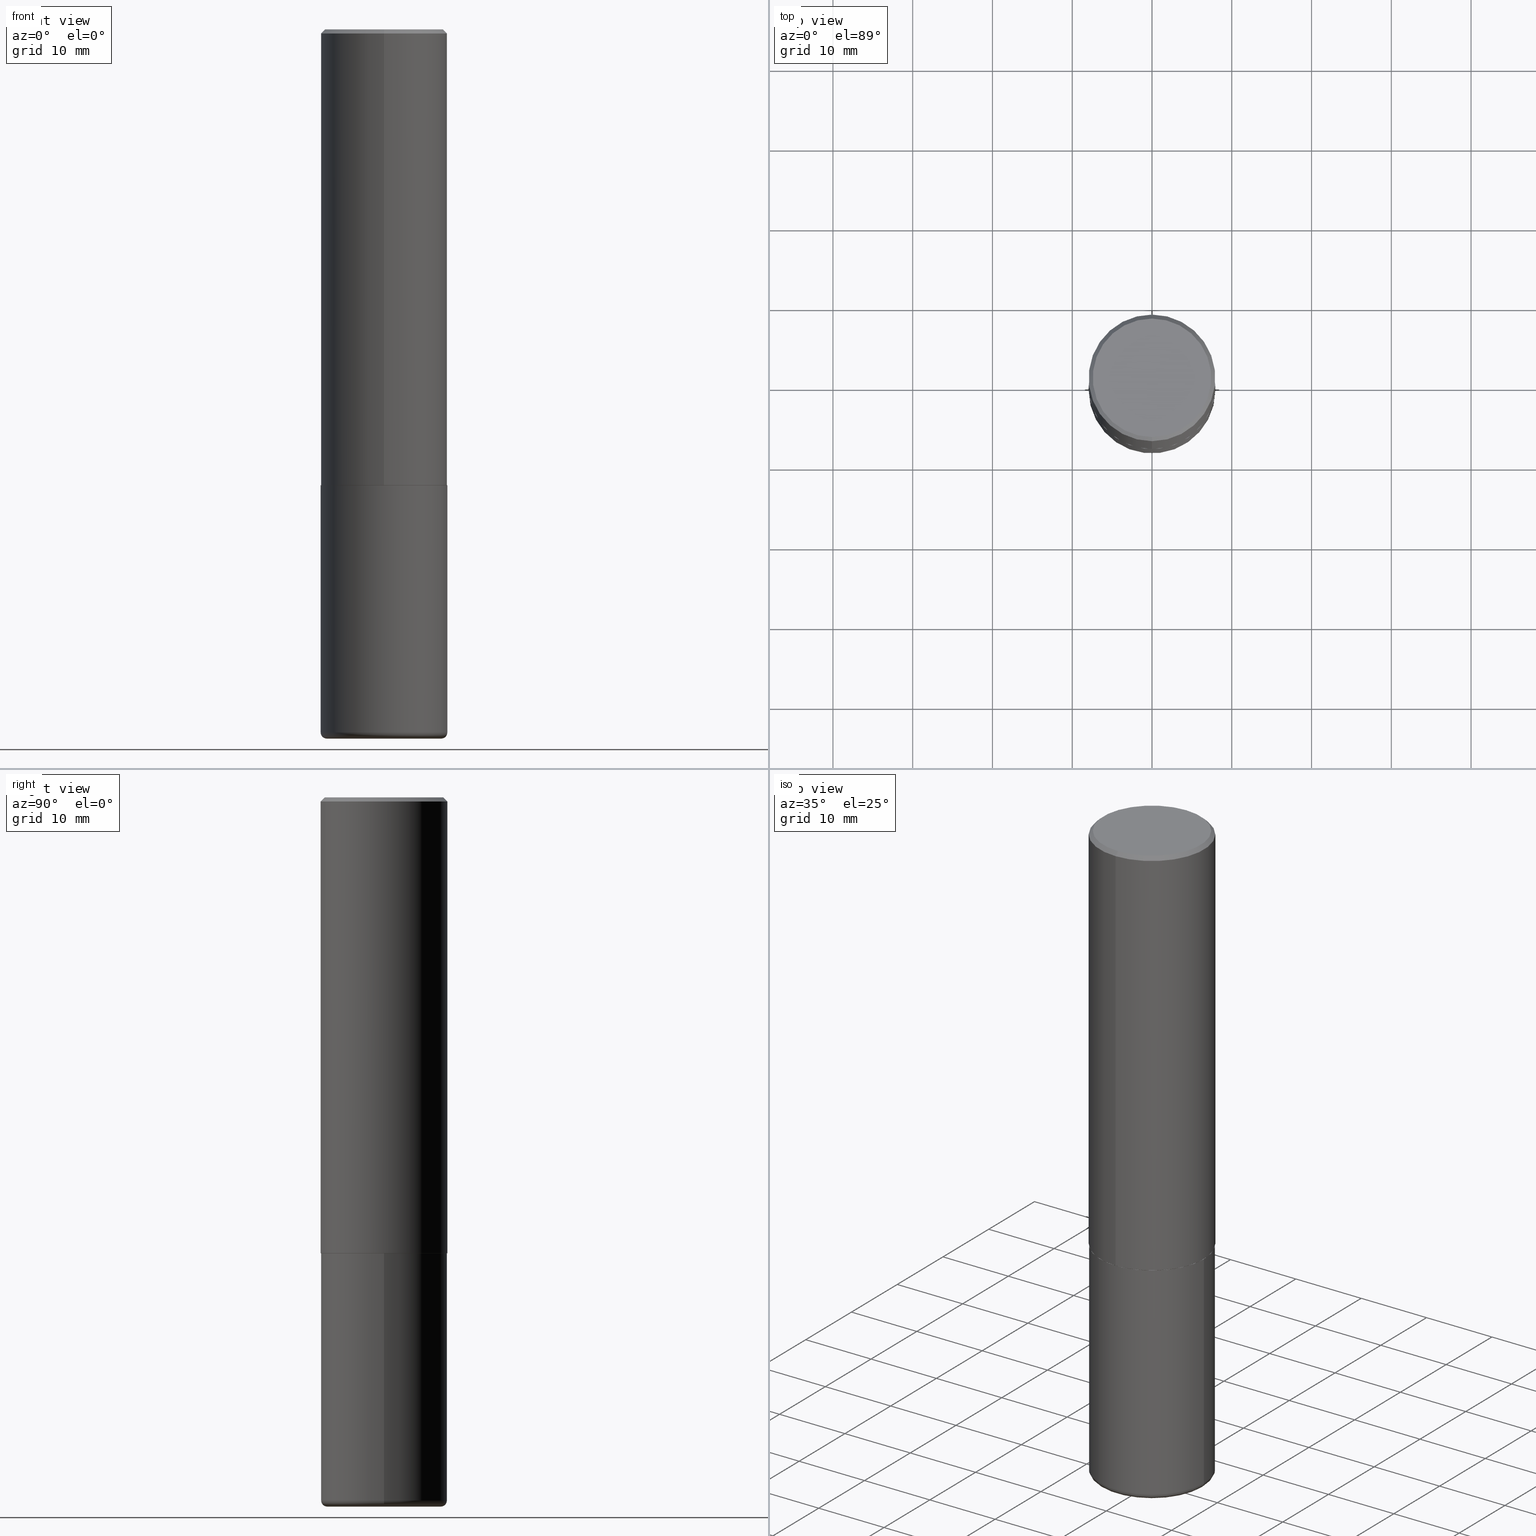
[diagram: canonical four-view strip — front | top / right | iso, engineering-drawing reading convention]
A machine part, canonical four-view strip (front | top / right | iso — engineering-drawing reading convention). The complete STEP part file that produces these views, byte-faithful:
ISO-10303-21;
HEADER;
FILE_DESCRIPTION (( 'STEP AP203' ),
    '1' );
FILE_NAME ('37204.STEP',
    '2024-03-01T21:52:29',
    ( '' ),
    ( '' ),
    'SwSTEP 2.0',
    'SolidWorks 2023',
    '' );
FILE_SCHEMA (( 'CONFIG_CONTROL_DESIGN' ));
ENDSEC;

DATA;
#1 = CARTESIAN_POINT ( 'NONE',  ( -2.143905624303602036E-15, -0.3124999999999999445, -0.01999999999999897693 ) ) ;
#2 = ORIENTED_EDGE ( 'NONE', *, *, #239, .F. ) ;
#3 = EDGE_LOOP ( 'NONE', ( #253, #339 ) ) ;
#4 = PERSON ( 'UNSPECIFIED', 'UNSPECIFIED', 'UNSPECIFIED', ('UNSPECIFIED'), ('UNSPECIFIED'), ('UNSPECIFIED') ) ;
#5 = CC_DESIGN_DATE_AND_TIME_ASSIGNMENT ( #376, #238, ( #36 ) ) ;
#6 = DIRECTION ( 'NONE',  ( 2.438088387897960049E-29, -3.491481338843145188E-15, -1.000000000000000000 ) ) ;
#7 = AXIS2_PLACEMENT_3D ( 'NONE', #362, #32, #361 ) ;
#8 = CARTESIAN_POINT ( 'NONE',  ( 5.499349729129385426E-29, -7.860064862005286079E-15, -2.249999999999999556 ) ) ;
#9 = LOCAL_TIME ( 16, 52, 29.00000000000000000, #142 ) ;
#10 = ORIENTED_EDGE ( 'NONE', *, *, #164, .F. ) ;
#11 = DIRECTION ( 'NONE',  ( -2.445468806185136597E-29, 3.491481338843145583E-15, 1.000000000000000000 ) ) ;
#12 = VERTEX_POINT ( 'NONE', #168 ) ;
#13 = CARTESIAN_POINT ( 'NONE',  ( -2.175192874099216718E-15, -0.3115000000000078817, -2.249999999999998668 ) ) ;
#14 = CYLINDRICAL_SURFACE ( 'NONE', #16, 0.3125000000000000555 ) ;
#15 = AXIS2_PLACEMENT_3D ( 'NONE', #326, #368, #76 ) ;
#16 = AXIS2_PLACEMENT_3D ( 'NONE', #133, #143, #279 ) ;
#17 = DIRECTION ( 'NONE',  ( -2.444155435168616212E-29, 3.493362160891238520E-15, 1.000000000000000000 ) ) ;
#18 = ORIENTED_EDGE ( 'NONE', *, *, #290, .F. ) ;
#19 = CYLINDRICAL_SURFACE ( 'NONE', #346, 0.3125000000000000000 ) ;
#20 = EDGE_LOOP ( 'NONE', ( #229, #330 ) ) ;
#21 = CONICAL_SURFACE ( 'NONE', #39, 0.3124999999999998890, 0.7853981633974473908 ) ;
#22 = LOCAL_TIME ( 16, 52, 29.00000000000000000, #244 ) ;
#23 = CARTESIAN_POINT ( 'NONE',  ( 0.000000000000000000, 0.000000000000000000, 0.000000000000000000 ) ) ;
#24 = LINE ( 'NONE', #141, #247 ) ;
#25 = ADVANCED_FACE ( 'NONE', ( #104 ), #200, .F. ) ;
#26 = APPROVAL_ROLE ( '' ) ;
#27 = VECTOR ( 'NONE', #158, 39.37007874015748143 ) ;
#28 = EDGE_CURVE ( 'NONE', #243, #123, #195, .T. ) ;
#29 = DIRECTION ( 'NONE',  ( -2.444155435168616212E-29, 3.493362160891238520E-15, 1.000000000000000000 ) ) ;
#30 = CARTESIAN_POINT ( 'NONE',  ( 3.832247084795320099E-29, -1.898936555520759148E-14, -3.500000000000000444 ) ) ;
#31 = ORIENTED_EDGE ( 'NONE', *, *, #332, .F. ) ;
#32 = DIRECTION ( 'NONE',  ( -2.445468806185136597E-29, 3.491481338843145583E-15, 1.000000000000000000 ) ) ;
#33 = EDGE_CURVE ( 'NONE', #123, #12, #407, .T. ) ;
#34 = EDGE_LOOP ( 'NONE', ( #294, #183, #251, #370 ) ) ;
#35 = VECTOR ( 'NONE', #182, 39.37007874015748143 ) ;
#36 = PRODUCT_DEFINITION ( 'UNKNOWN', '', #268, #62 ) ;
#37 = DIRECTION ( 'NONE',  ( -6.982962677686265922E-15, -1.000000000000000000, 3.496765431890253764E-15 ) ) ;
#38 = VERTEX_POINT ( 'NONE', #210 ) ;
#39 = AXIS2_PLACEMENT_3D ( 'NONE', #336, #400, #224 ) ;
#40 = CARTESIAN_POINT ( 'NONE',  ( -3.247647768543791356E-45, 4.641771003304080589E-31, 1.328740276421799924E-16 ) ) ;
#41 = CIRCLE ( 'NONE', #320, 0.3124999999999998890 ) ;
#42 = EDGE_CURVE ( 'NONE', #387, #43, #328, .T. ) ;
#43 = VERTEX_POINT ( 'NONE', #353 ) ;
#44 = LENGTH_MEASURE_WITH_UNIT ( LENGTH_MEASURE( 0.02539999999999999897 ), #226 );
#45 = DIRECTION ( 'NONE',  ( -6.982962677686265133E-15, -1.000000000000000000, 3.493362160891238126E-15 ) ) ;
#46 = VERTEX_POINT ( 'NONE', #308 ) ;
#47 = EDGE_CURVE ( 'NONE', #52, #232, #24, .T. ) ;
#48 = DIRECTION ( 'NONE',  ( 1.000000000000000000, -6.982962677686269077E-15, 0.000000000000000000 ) ) ;
#49 = CONICAL_SURFACE ( 'NONE', #173, 0.3124999999999998890, 0.7853981633974473908 ) ;
#50 = CC_DESIGN_APPROVAL ( #351, ( #268 ) ) ;
#51 = DIRECTION ( 'NONE',  ( -6.982962677686265922E-15, -1.000000000000000000, 3.493362160891238126E-15 ) ) ;
#52 = VERTEX_POINT ( 'NONE', #281 ) ;
#53 = CALENDAR_DATE ( 2024, 1, 3 ) ;
#54 = DIRECTION ( 'NONE',  ( 4.937700262164543309E-15, 0.7071067811865444641, -0.7071067811865506814 ) ) ;
#55 = CALENDAR_DATE ( 2024, 1, 3 ) ;
#56 = CONICAL_SURFACE ( 'NONE', #399, 0.3114999999999999991, 0.7853981633975507526 ) ;
#57 = CARTESIAN_POINT ( 'NONE',  ( 5.502304813916556222E-29, -7.855833012397076871E-15, -2.249999999999999556 ) ) ;
#58 = APPROVAL_ROLE ( '' ) ;
#59 = CARTESIAN_POINT ( 'NONE',  ( -2.182175836776958741E-15, -0.3125000000000000555, 1.091675675278512284E-15 ) ) ;
#60 = AXIS2_PLACEMENT_3D ( 'NONE', #73, #199, #48 ) ;
#61 = FACE_OUTER_BOUND ( 'NONE', #341, .T. ) ;
#62 = DESIGN_CONTEXT ( 'detailed design', #84, 'design' ) ;
#63 = CARTESIAN_POINT ( 'NONE',  ( -2.175192874099216718E-15, -0.3115000000000078817, -2.249999999999998668 ) ) ;
#64 = APPLICATION_CONTEXT ( 'configuration controlled 3d designs of mechanical parts and assemblies' ) ;
#65 = CARTESIAN_POINT ( 'NONE',  ( 5.502304813916556222E-29, -7.855833012397076871E-15, -2.249999999999999556 ) ) ;
#66 = EDGE_CURVE ( 'NONE', #409, #237, #413, .T. ) ;
#67 = CIRCLE ( 'NONE', #306, 0.3125000000000000000 ) ;
#68 = DIRECTION ( 'NONE',  ( -2.444155435168616212E-29, 3.493362160891238520E-15, 1.000000000000000000 ) ) ;
#69 = FACE_OUTER_BOUND ( 'NONE', #3, .T. ) ;
#70 = CARTESIAN_POINT ( 'NONE',  ( 4.888310870337248995E-31, -6.986724321782500903E-17, -0.02000000000000006981 ) ) ;
#71 = ORIENTED_EDGE ( 'NONE', *, *, #111, .F. ) ;
#72 = CIRCLE ( 'NONE', #338, 0.3125000000000002776 ) ;
#73 = CARTESIAN_POINT ( 'NONE',  ( 5.502304813916556222E-29, -7.855833012397076871E-15, -2.249999999999999556 ) ) ;
#74 = ORIENTED_EDGE ( 'NONE', *, *, #92, .T. ) ;
#75 = DIRECTION ( 'NONE',  ( -6.982962677686265133E-15, -1.000000000000000000, 3.496765431890258103E-15 ) ) ;
#76 = DIRECTION ( 'NONE',  ( 6.982962677686265922E-15, 1.000000000000000000, -3.493362160891238126E-15 ) ) ;
#77 = CC_DESIGN_PERSON_AND_ORGANIZATION_ASSIGNMENT ( #209, #349, ( #36 ) ) ;
#78 = ORIENTED_EDGE ( 'NONE', *, *, #66, .F. ) ;
#79 = COORDINATED_UNIVERSAL_TIME_OFFSET ( 5, 0, .BEHIND. ) ;
#80 = CARTESIAN_POINT ( 'NONE',  ( -2.182175836776905099E-15, -0.3125000000000081601, -2.248999999999998778 ) ) ;
#81 = CIRCLE ( 'NONE', #313, 0.3125000000000002776 ) ;
#82 = DATE_AND_TIME ( #53, #9 ) ;
#83 = DATE_AND_TIME ( #414, #355 ) ;
#84 = APPLICATION_CONTEXT ( 'configuration controlled 3d designs of mechanical parts and assemblies' ) ;
#85 = AXIS2_PLACEMENT_3D ( 'NONE', #122, #120, #94 ) ;
#86 = CIRCLE ( 'NONE', #374, 0.03000000000000025910 ) ;
#87 = SECURITY_CLASSIFICATION_LEVEL ( 'unclassified' ) ;
#88 = CARTESIAN_POINT ( 'NONE',  ( -0.3125000000000000000, 2.220446049250313081E-15, -1.537167215704658232E-29 ) ) ;
#89 = AXIS2_PLACEMENT_3D ( 'NONE', #262, #234, #51 ) ;
#90 = CIRCLE ( 'NONE', #185, 0.3125000000000000000 ) ;
#91 = CARTESIAN_POINT ( 'NONE',  ( 5.499349729129385426E-29, -7.860064862005286079E-15, -2.249999999999999556 ) ) ;
#92 = EDGE_CURVE ( 'NONE', #46, #127, #284, .T. ) ;
#93 = CARTESIAN_POINT ( 'NONE',  ( -3.247647768543791356E-45, 4.641771003304080589E-31, 1.328740276421799924E-16 ) ) ;
#94 = DIRECTION ( 'NONE',  ( 1.000000000000000000, -6.982962677686269077E-15, 4.883557194083113462E-29 ) ) ;
#95 = AXIS2_PLACEMENT_3D ( 'NONE', #385, #285, #358 ) ;
#96 = LOCAL_TIME ( 16, 52, 29.00000000000000000, #79 ) ;
#97 = CARTESIAN_POINT ( 'NONE',  ( 4.888310870337248995E-31, -6.986724321782500903E-17, -0.02000000000000006981 ) ) ;
#98 = ORIENTED_EDGE ( 'NONE', *, *, #47, .F. ) ;
#99 = CARTESIAN_POINT ( 'NONE',  ( -2.075300644325886310E-15, -0.2924999999999997047, 1.154682459702866479E-15 ) ) ;
#100 = ORIENTED_EDGE ( 'NONE', *, *, #221, .F. ) ;
#101 = EDGE_CURVE ( 'NONE', #232, #38, #90, .T. ) ;
#102 = CARTESIAN_POINT ( 'NONE',  ( 5.496905573694216767E-29, -7.856571499844395127E-15, -2.248999999999999666 ) ) ;
#103 = ADVANCED_FACE ( 'NONE', ( #350 ), #19, .T. ) ;
#104 = FACE_OUTER_BOUND ( 'NONE', #191, .T. ) ;
#105 = CYLINDRICAL_SURFACE ( 'NONE', #360, 0.3125000000000000555 ) ;
#106 = APPROVAL_STATUS ( 'not_yet_approved' ) ;
#107 = AXIS2_PLACEMENT_3D ( 'NONE', #30, #189, #388 ) ;
#108 = CARTESIAN_POINT ( 'NONE',  ( 0.000000000000000000, 0.000000000000000000, 0.000000000000000000 ) ) ;
#109 = EDGE_LOOP ( 'NONE', ( #137, #359, #225, #169 ) ) ;
#110 = SHAPE_DEFINITION_REPRESENTATION ( #352, #322 ) ;
#111 = EDGE_CURVE ( 'NONE', #43, #171, #86, .T. ) ;
#112 = DIRECTION ( 'NONE',  ( 1.000000000000000000, -6.982962677686269077E-15, 0.000000000000000000 ) ) ;
#113 = AXIS2_PLACEMENT_3D ( 'NONE', #8, #327, #333 ) ;
#114 = UNCERTAINTY_MEASURE_WITH_UNIT (LENGTH_MEASURE( 1.000000000000000082E-05 ), #162, 'distance_accuracy_value', 'NONE');
#115 = DIRECTION ( 'NONE',  ( -2.445468806185136597E-29, 3.491481338843145583E-15, 1.000000000000000000 ) ) ;
#116 = DIRECTION ( 'NONE',  ( -6.982962677686265133E-15, -1.000000000000000000, 3.493362160891238126E-15 ) ) ;
#117 = LINE ( 'NONE', #63, #35 ) ;
#118 = CC_DESIGN_APPROVAL ( #144, ( #36 ) ) ;
#119 = ADVANCED_FACE ( 'NONE', ( #343 ), #267, .T. ) ;
#120 = DIRECTION ( 'NONE',  ( -2.445468806185136597E-29, 3.491481338843145583E-15, 1.000000000000000000 ) ) ;
#121 = ORIENTED_EDGE ( 'NONE', *, *, #42, .T. ) ;
#122 = CARTESIAN_POINT ( 'NONE',  ( 8.485776757462424574E-29, -1.211544024578571439E-14, -3.469999999999999751 ) ) ;
#123 = VERTEX_POINT ( 'NONE', #256 ) ;
#124 = EDGE_LOOP ( 'NONE', ( #160, #161, #318, #292 ) ) ;
#125 = CIRCLE ( 'NONE', #60, 0.3125000000000000000 ) ;
#126 = CARTESIAN_POINT ( 'NONE',  ( 0.000000000000000000, 0.000000000000000000, 0.000000000000000000 ) ) ;
#127 = VERTEX_POINT ( 'NONE', #219 ) ;
#128 = CARTESIAN_POINT ( 'NONE',  ( -2.143905624303602036E-15, -0.3124999999999999445, -0.01999999999999897693 ) ) ;
#129 = EDGE_CURVE ( 'NONE', #171, #38, #150, .T. ) ;
#130 = DIRECTION ( 'NONE',  ( -6.982962677686265133E-15, -1.000000000000000000, 3.496765431890258103E-15 ) ) ;
#131 = ADVANCED_FACE ( 'NONE', ( #152 ), #418, .T. ) ;
#132 = AXIS2_PLACEMENT_3D ( 'NONE', #300, #17, #404 ) ;
#133 = CARTESIAN_POINT ( 'NONE',  ( 0.000000000000000000, 0.000000000000000000, 0.000000000000000000 ) ) ;
#134 = APPROVAL_PERSON_ORGANIZATION ( #302, #351, #58 ) ;
#135 = ORIENTED_EDGE ( 'NONE', *, *, #157, .T. ) ;
#136 = DIRECTION ( 'NONE',  ( 7.105427357601001859E-15, 1.000000000000000000, -3.491481338843145583E-15 ) ) ;
#137 = ORIENTED_EDGE ( 'NONE', *, *, #129, .F. ) ;
#138 = APPLICATION_PROTOCOL_DEFINITION ( 'international standard', 'config_control_design', 1994, #84 ) ;
#139 = CIRCLE ( 'NONE', #297, 0.2924999999999997047 ) ;
#140 = DATE_AND_TIME ( #402, #329 ) ;
#141 = CARTESIAN_POINT ( 'NONE',  ( 0.3125000000000000000, -2.182175836776958347E-15, 1.523805242436230075E-29 ) ) ;
#142 = COORDINATED_UNIVERSAL_TIME_OFFSET ( 5, 0, .BEHIND. ) ;
#143 = DIRECTION ( 'NONE',  ( -2.444155435168616212E-29, 3.493362160891238520E-15, 1.000000000000000000 ) ) ;
#144 = APPROVAL ( #106, 'UNSPECIFIED' ) ;
#145 = DIRECTION ( 'NONE',  ( -2.444155435168616212E-29, 3.493362160891238126E-15, 1.000000000000000000 ) ) ;
#146 = CARTESIAN_POINT ( 'NONE',  ( 8.559140821647978089E-29, -1.222018468595101092E-14, -3.500000000000000444 ) ) ;
#147 = AXIS2_PLACEMENT_3D ( 'NONE', #126, #231, #403 ) ;
#148 = EDGE_LOOP ( 'NONE', ( #31, #10, #74, #304 ) ) ;
#149 = PRODUCT ( '37204', '37204', '', ( #378 ) ) ;
#150 = LINE ( 'NONE', #88, #254 ) ;
#151 = DIRECTION ( 'NONE',  ( -2.445468806185136597E-29, 3.491481338843145583E-15, 1.000000000000000000 ) ) ;
#152 = FACE_OUTER_BOUND ( 'NONE', #397, .T. ) ;
#153 = ORIENTED_EDGE ( 'NONE', *, *, #28, .F. ) ;
#154 = TOROIDAL_SURFACE ( 'NONE', #7, 0.2825000000000000289, 0.03000000000000024175 ) ;
#155 = ORIENTED_EDGE ( 'NONE', *, *, #212, .T. ) ;
#156 = CC_DESIGN_APPROVAL ( #325, ( #174 ) ) ;
#157 = EDGE_CURVE ( 'NONE', #52, #171, #354, .T. ) ;
#158 = DIRECTION ( 'NONE',  ( -4.851104656540959542E-15, -0.7071067811865493491, -0.7071067811865457964 ) ) ;
#159 = LINE ( 'NONE', #128, #27 ) ;
#160 = ORIENTED_EDGE ( 'NONE', *, *, #390, .F. ) ;
#161 = ORIENTED_EDGE ( 'NONE', *, *, #290, .T. ) ;
#162 =( CONVERSION_BASED_UNIT ( 'INCH', #44 ) LENGTH_UNIT ( ) NAMED_UNIT ( #184 ) );
#163 = DIRECTION ( 'NONE',  ( -2.444155435168616212E-29, 3.493362160891238520E-15, 1.000000000000000000 ) ) ;
#164 = EDGE_CURVE ( 'NONE', #46, #356, #139, .T. ) ;
#165 = DIRECTION ( 'NONE',  ( -2.444155435168616212E-29, 3.493362160891238520E-15, 1.000000000000000000 ) ) ;
#166 = ORIENTED_EDGE ( 'NONE', *, *, #239, .T. ) ;
#167 = VECTOR ( 'NONE', #54, 39.37007874015748143 ) ;
#168 = CARTESIAN_POINT ( 'NONE',  ( 2.220446049250341480E-15, 0.3124999999999924505, -2.249000000000000998 ) ) ;
#169 = ORIENTED_EDGE ( 'NONE', *, *, #375, .F. ) ;
#170 = APPLICATION_PROTOCOL_DEFINITION ( 'international standard', 'config_control_design', 1994, #64 ) ;
#171 = VERTEX_POINT ( 'NONE', #217 ) ;
#172 = APPROVAL_STATUS ( 'not_yet_approved' ) ;
#173 = AXIS2_PLACEMENT_3D ( 'NONE', #97, #223, #314 ) ;
#174 = SECURITY_CLASSIFICATION ( '', '', #87 ) ;
#175 = ADVANCED_FACE ( 'NONE', ( #220 ), #154, .T. ) ;
#176 =( NAMED_UNIT ( * ) SI_UNIT ( $, .STERADIAN. ) SOLID_ANGLE_UNIT ( ) );
#177 = COORDINATED_UNIVERSAL_TIME_OFFSET ( 5, 0, .BEHIND. ) ;
#178 = DIRECTION ( 'NONE',  ( 5.024295867788576727E-15, 0.7071067811866224018, 0.7071067811864726327 ) ) ;
#179 = CARTESIAN_POINT ( 'NONE',  ( 2.182175836776957558E-15, 0.3124999999999998335, -0.02000000000000116268 ) ) ;
#180 = CIRCLE ( 'NONE', #218, 0.3114999999999999991 ) ;
#181 = CARTESIAN_POINT ( 'NONE',  ( 5.499349729129385426E-29, -7.860064862005286079E-15, -2.249999999999999556 ) ) ;
#182 = DIRECTION ( 'NONE',  ( -4.937700262165053702E-15, -0.7071067811866175168, 0.7071067811864775177 ) ) ;
#183 = ORIENTED_EDGE ( 'NONE', *, *, #332, .T. ) ;
#184 = DIMENSIONAL_EXPONENTS ( 1.000000000000000000, 0.000000000000000000, 0.000000000000000000, 0.000000000000000000, 0.000000000000000000, 0.000000000000000000, 0.000000000000000000 ) ;
#185 = AXIS2_PLACEMENT_3D ( 'NONE', #57, #415, #112 ) ;
#186 = ORIENTED_EDGE ( 'NONE', *, *, #33, .T. ) ;
#187 = ORGANIZATION ( 'UNSPECIFIED', 'UNSPECIFIED', '' ) ;
#188 = ADVANCED_FACE ( 'NONE', ( #61 ), #56, .T. ) ;
#189 = DIRECTION ( 'NONE',  ( 2.438088387897960049E-29, -3.491481338843145188E-15, -1.000000000000000000 ) ) ;
#190 = FACE_OUTER_BOUND ( 'NONE', #20, .T. ) ;
#191 = EDGE_LOOP ( 'NONE', ( #153, #100 ) ) ;
#192 = ORIENTED_EDGE ( 'NONE', *, *, #369, .T. ) ;
#193 = DIRECTION ( 'NONE',  ( -2.444155435168616212E-29, 3.493362160891238520E-15, 1.000000000000000000 ) ) ;
#194 = ORIENTED_EDGE ( 'NONE', *, *, #369, .F. ) ;
#195 = CIRCLE ( 'NONE', #132, 0.3114999999999999991 ) ;
#196 = EDGE_LOOP ( 'NONE', ( #265, #186, #194, #2 ) ) ;
#197 = AXIS2_PLACEMENT_3D ( 'NONE', #65, #6, #323 ) ;
#198 =( GEOMETRIC_REPRESENTATION_CONTEXT ( 3 ) GLOBAL_UNCERTAINTY_ASSIGNED_CONTEXT ( ( #114 ) ) GLOBAL_UNIT_ASSIGNED_CONTEXT ( ( #162, #201, #176 ) ) REPRESENTATION_CONTEXT ( 'NONE', 'WORKASPACE' ) );
#199 = DIRECTION ( 'NONE',  ( -2.445468806185136597E-29, 3.491481338843145583E-15, 1.000000000000000000 ) ) ;
#200 = PLANE ( 'NONE',  #89 ) ;
#201 =( NAMED_UNIT ( * ) PLANE_ANGLE_UNIT ( ) SI_UNIT ( $, .RADIAN. ) );
#202 = CARTESIAN_POINT ( 'NONE',  ( 8.485776757462424574E-29, -1.211544024578571439E-14, -3.469999999999999751 ) ) ;
#203 = DIRECTION ( 'NONE',  ( -2.444155435168616212E-29, 3.493362160891238520E-15, 1.000000000000000000 ) ) ;
#204 = CONICAL_SURFACE ( 'NONE', #113, 0.3114999999999999991, 0.7853981633975507526 ) ;
#205 = PERSON_AND_ORGANIZATION ( #4, #187 ) ;
#206 = EDGE_LOOP ( 'NONE', ( #121, #276, #380, #372 ) ) ;
#207 = PERSON_AND_ORGANIZATION_ROLE ( 'design_owner' ) ;
#208 = DIRECTION ( 'NONE',  ( -1.000000000000000000, 7.105427357600994759E-15, 0.000000000000000000 ) ) ;
#209 = PERSON_AND_ORGANIZATION ( #4, #187 ) ;
#210 = CARTESIAN_POINT ( 'NONE',  ( -0.3125000000000000000, -7.765190579841083341E-15, -2.249999999999999556 ) ) ;
#211 = PERSON_AND_ORGANIZATION_ROLE ( 'creator' ) ;
#212 = EDGE_CURVE ( 'NONE', #43, #387, #222, .T. ) ;
#213 = DIRECTION ( 'NONE',  ( 0.000000000000000000, 0.000000000000000000, 1.000000000000000000 ) ) ;
#214 = CARTESIAN_POINT ( 'NONE',  ( 2.213340621892766504E-15, 0.3114999999999921720, -2.250000000000000888 ) ) ;
#215 = ADVANCED_FACE ( 'NONE', ( #69 ), #357, .F. ) ;
#216 = CC_DESIGN_PERSON_AND_ORGANIZATION_ASSIGNMENT ( #205, #307, ( #174 ) ) ;
#217 = CARTESIAN_POINT ( 'NONE',  ( -0.3125000000000001665, -9.894994196535401314E-15, -3.469999999999999751 ) ) ;
#218 = AXIS2_PLACEMENT_3D ( 'NONE', #91, #68, #286 ) ;
#219 = CARTESIAN_POINT ( 'NONE',  ( 2.182175836776957558E-15, 0.3124999999999998335, -0.02000000000000116268 ) ) ;
#220 = FACE_OUTER_BOUND ( 'NONE', #206, .T. ) ;
#221 = EDGE_CURVE ( 'NONE', #123, #243, #180, .T. ) ;
#222 = CIRCLE ( 'NONE', #381, 0.2825000000000000289 ) ;
#223 = DIRECTION ( 'NONE',  ( 2.444155435168616212E-29, -3.493362160891238520E-15, -1.000000000000000000 ) ) ;
#224 = DIRECTION ( 'NONE',  ( 6.982962677686265133E-15, 1.000000000000000000, -3.496765431890258103E-15 ) ) ;
#225 = ORIENTED_EDGE ( 'NONE', *, *, #47, .T. ) ;
#226 =( LENGTH_UNIT ( ) NAMED_UNIT ( * ) SI_UNIT ( $, .METRE. ) );
#227 = PRODUCT_RELATED_PRODUCT_CATEGORY ( 'detail', '', ( #149 ) ) ;
#228 = ORIENTED_EDGE ( 'NONE', *, *, #383, .F. ) ;
#229 = ORIENTED_EDGE ( 'NONE', *, *, #164, .T. ) ;
#230 = CIRCLE ( 'NONE', #319, 0.3124999999999998890 ) ;
#231 = DIRECTION ( 'NONE',  ( -2.445468806185136597E-29, 3.491481338843145583E-15, 1.000000000000000000 ) ) ;
#232 = VERTEX_POINT ( 'NONE', #259 ) ;
#233 = FACE_OUTER_BOUND ( 'NONE', #196, .T. ) ;
#234 = DIRECTION ( 'NONE',  ( -2.444155435168616212E-29, 3.493362160891238126E-15, 1.000000000000000000 ) ) ;
#235 = ADVANCED_FACE ( 'NONE', ( #392 ), #49, .T. ) ;
#236 = CC_DESIGN_PERSON_AND_ORGANIZATION_ASSIGNMENT ( #382, #272, ( #268 ) ) ;
#237 = VERTEX_POINT ( 'NONE', #1 ) ;
#238 = DATE_TIME_ROLE ( 'creation_date' ) ;
#239 = EDGE_CURVE ( 'NONE', #243, #409, #117, .T. ) ;
#240 = AXIS2_PLACEMENT_3D ( 'NONE', #296, #396, #289 ) ;
#241 = CC_DESIGN_SECURITY_CLASSIFICATION ( #174, ( #268 ) ) ;
#242 = DIRECTION ( 'NONE',  ( 1.000000000000000000, -6.982962677686269077E-15, 0.000000000000000000 ) ) ;
#243 = VERTEX_POINT ( 'NONE', #13 ) ;
#244 = COORDINATED_UNIVERSAL_TIME_OFFSET ( 5, 0, .BEHIND. ) ;
#245 = PERSON_AND_ORGANIZATION ( #4, #187 ) ;
#246 = CC_DESIGN_DATE_AND_TIME_ASSIGNMENT ( #140, #406, ( #174 ) ) ;
#247 = VECTOR ( 'NONE', #310, 39.37007874015748143 ) ;
#248 = CARTESIAN_POINT ( 'NONE',  ( 0.2825000000000000289, -1.419287164239738095E-14, -3.500000000000000444 ) ) ;
#249 = MANIFOLD_SOLID_BREP ( 'Body-Move/Copy2[1]', #408 ) ;
#250 = ADVANCED_FACE ( 'NONE', ( #261 ), #21, .T. ) ;
#251 = ORIENTED_EDGE ( 'NONE', *, *, #383, .T. ) ;
#252 = CARTESIAN_POINT ( 'NONE',  ( 8.559140821647978089E-29, -1.222018468595101092E-14, -3.500000000000000444 ) ) ;
#253 = ORIENTED_EDGE ( 'NONE', *, *, #101, .T. ) ;
#254 = VECTOR ( 'NONE', #258, 39.37007874015748143 ) ;
#255 = ADVANCED_FACE ( 'NONE', ( #293 ), #363, .T. ) ;
#256 = CARTESIAN_POINT ( 'NONE',  ( 2.216893335571567797E-15, 0.3114999999999921720, -2.250000000000000888 ) ) ;
#257 = CC_DESIGN_PERSON_AND_ORGANIZATION_ASSIGNMENT ( #373, #207, ( #149 ) ) ;
#258 = DIRECTION ( 'NONE',  ( -2.445468806185136877E-29, 3.491481338843145188E-15, 1.000000000000000000 ) ) ;
#259 = CARTESIAN_POINT ( 'NONE',  ( 0.3125000000000000000, -1.003800884917403522E-14, -2.249999999999999556 ) ) ;
#260 = CIRCLE ( 'NONE', #240, 0.03000000000000025910 ) ;
#261 = FACE_OUTER_BOUND ( 'NONE', #34, .T. ) ;
#262 = CARTESIAN_POINT ( 'NONE',  ( 5.499349729129385426E-29, -7.860064862005286079E-15, -2.249999999999999556 ) ) ;
#263 = ORIENTED_EDGE ( 'NONE', *, *, #33, .F. ) ;
#264 = DIRECTION ( 'NONE',  ( 1.000000000000000000, -6.982962677686269077E-15, 0.000000000000000000 ) ) ;
#265 = ORIENTED_EDGE ( 'NONE', *, *, #28, .T. ) ;
#266 = FACE_OUTER_BOUND ( 'NONE', #124, .T. ) ;
#267 = TOROIDAL_SURFACE ( 'NONE', #85, 0.2825000000000000289, 0.03000000000000024175 ) ;
#268 = PRODUCT_DEFINITION_FORMATION_WITH_SPECIFIED_SOURCE ( 'ANY', '', #149, .NOT_KNOWN. ) ;
#269 = ADVANCED_FACE ( 'NONE', ( #190 ), #394, .F. ) ;
#270 = DIRECTION ( 'NONE',  ( -2.444155435168616212E-29, 3.493362160891238520E-15, 1.000000000000000000 ) ) ;
#271 = ORIENTED_EDGE ( 'NONE', *, *, #101, .F. ) ;
#272 = PERSON_AND_ORGANIZATION_ROLE ( 'design_supplier' ) ;
#273 = FACE_OUTER_BOUND ( 'NONE', #393, .T. ) ;
#274 = CC_DESIGN_PERSON_AND_ORGANIZATION_ASSIGNMENT ( #275, #211, ( #268 ) ) ;
#275 = PERSON_AND_ORGANIZATION ( #4, #187 ) ;
#276 = ORIENTED_EDGE ( 'NONE', *, *, #111, .T. ) ;
#277 = CLOSED_SHELL ( 'NONE', ( #317, #321, #250, #235, #384, #188, #25, #269 ) ) ;
#278 = VECTOR ( 'NONE', #178, 39.37007874015748143 ) ;
#279 = DIRECTION ( 'NONE',  ( -6.982962677686266711E-15, -1.000000000000000000, 3.493362160891238520E-15 ) ) ;
#280 = APPROVAL_ROLE ( '' ) ;
#281 = CARTESIAN_POINT ( 'NONE',  ( 0.3125000000000001665, -1.429761608256267432E-14, -3.469999999999999751 ) ) ;
#282 = CALENDAR_DATE ( 2024, 1, 3 ) ;
#283 = DIRECTION ( 'NONE',  ( -2.444155435168616212E-29, 3.493362160891238126E-15, 1.000000000000000000 ) ) ;
#284 = LINE ( 'NONE', #179, #167 ) ;
#285 = DIRECTION ( 'NONE',  ( -2.445468806185136597E-29, 3.491481338843145583E-15, 1.000000000000000000 ) ) ;
#286 = DIRECTION ( 'NONE',  ( -6.982962677686265922E-15, -1.000000000000000000, 3.507991003100177457E-15 ) ) ;
#287 = ORIENTED_EDGE ( 'NONE', *, *, #390, .T. ) ;
#288 = CIRCLE ( 'NONE', #391, 0.2924999999999997047 ) ;
#289 = DIRECTION ( 'NONE',  ( 1.000000000000000000, -6.982962677686273021E-15, 0.000000000000000000 ) ) ;
#290 = EDGE_CURVE ( 'NONE', #12, #409, #72, .T. ) ;
#291 = AXIS2_PLACEMENT_3D ( 'NONE', #146, #345, #242 ) ;
#292 = ORIENTED_EDGE ( 'NONE', *, *, #298, .F. ) ;
#293 = FACE_OUTER_BOUND ( 'NONE', #109, .T. ) ;
#294 = ORIENTED_EDGE ( 'NONE', *, *, #324, .F. ) ;
#295 = CARTESIAN_POINT ( 'NONE',  ( 5.496905573694216767E-29, -7.856571499844395127E-15, -2.248999999999999666 ) ) ;
#296 = CARTESIAN_POINT ( 'NONE',  ( 0.2825000000000000289, -1.408812720223208600E-14, -3.469999999999999751 ) ) ;
#297 = AXIS2_PLACEMENT_3D ( 'NONE', #93, #29, #116 ) ;
#298 = EDGE_CURVE ( 'NONE', #127, #237, #230, .T. ) ;
#299 = DIRECTION ( 'NONE',  ( -2.444155435168616212E-29, 3.493362160891238520E-15, 1.000000000000000000 ) ) ;
#300 = CARTESIAN_POINT ( 'NONE',  ( 5.499349729129385426E-29, -7.860064862005286079E-15, -2.249999999999999556 ) ) ;
#301 = EDGE_LOOP ( 'NONE', ( #71, #155, #367, #303 ) ) ;
#302 = PERSON_AND_ORGANIZATION ( #4, #187 ) ;
#303 = ORIENTED_EDGE ( 'NONE', *, *, #311, .F. ) ;
#304 = ORIENTED_EDGE ( 'NONE', *, *, #298, .T. ) ;
#305 = APPROVAL_STATUS ( 'not_yet_approved' ) ;
#306 = AXIS2_PLACEMENT_3D ( 'NONE', #202, #11, #264 ) ;
#307 = PERSON_AND_ORGANIZATION_ROLE ( 'classification_officer' ) ;
#308 = CARTESIAN_POINT ( 'NONE',  ( 2.112346210000094260E-15, 0.2924999999999997047, -8.889344044185063951E-16 ) ) ;
#309 = DIRECTION ( 'NONE',  ( 1.000000000000000000, 0.000000000000000000, 0.000000000000000000 ) ) ;
#310 = DIRECTION ( 'NONE',  ( -2.445468806185136877E-29, 3.491481338843145188E-15, 1.000000000000000000 ) ) ;
#311 = EDGE_CURVE ( 'NONE', #171, #52, #67, .T. ) ;
#312 = CARTESIAN_POINT ( 'NONE',  ( 2.220446049250313081E-15, 0.3125000000000000555, -1.091675675278512284E-15 ) ) ;
#313 = AXIS2_PLACEMENT_3D ( 'NONE', #295, #203, #364 ) ;
#314 = DIRECTION ( 'NONE',  ( 6.982962677686265133E-15, 1.000000000000000000, -3.496765431890258103E-15 ) ) ;
#315 = DIRECTION ( 'NONE',  ( 1.000000000000000000, -6.982962677686269077E-15, 0.000000000000000000 ) ) ;
#316 = DIRECTION ( 'NONE',  ( -2.444155435168616212E-29, 3.493362160891238520E-15, 1.000000000000000000 ) ) ;
#317 = ADVANCED_FACE ( 'NONE', ( #233 ), #204, .T. ) ;
#318 = ORIENTED_EDGE ( 'NONE', *, *, #66, .T. ) ;
#319 = AXIS2_PLACEMENT_3D ( 'NONE', #70, #270, #75 ) ;
#320 = AXIS2_PLACEMENT_3D ( 'NONE', #331, #163, #130 ) ;
#321 = ADVANCED_FACE ( 'NONE', ( #273 ), #105, .T. ) ;
#322 = ADVANCED_BREP_SHAPE_REPRESENTATION ( '37204', ( #249, #389, #416 ), #198 ) ;
#323 = DIRECTION ( 'NONE',  ( -1.000000000000000000, 6.982962677686265922E-15, -4.876176775795935793E-29 ) ) ;
#324 = EDGE_CURVE ( 'NONE', #356, #46, #288, .T. ) ;
#325 = APPROVAL ( #172, 'UNSPECIFIED' ) ;
#326 = CARTESIAN_POINT ( 'NONE',  ( 2.042516583223230567E-15, 0.2924999999999997047, -9.553714182395964653E-16 ) ) ;
#327 = DIRECTION ( 'NONE',  ( -2.444155435168616212E-29, 3.493362160891238520E-15, 1.000000000000000000 ) ) ;
#328 = CIRCLE ( 'NONE', #291, 0.2825000000000000289 ) ;
#329 = LOCAL_TIME ( 16, 52, 29.00000000000000000, #340 ) ;
#330 = ORIENTED_EDGE ( 'NONE', *, *, #324, .T. ) ;
#331 = CARTESIAN_POINT ( 'NONE',  ( 4.888310870337248995E-31, -6.986724321782500903E-17, -0.02000000000000006981 ) ) ;
#332 = EDGE_CURVE ( 'NONE', #356, #237, #159, .T. ) ;
#333 = DIRECTION ( 'NONE',  ( -6.982962677686265922E-15, -1.000000000000000000, 3.507991003100177457E-15 ) ) ;
#334 = EDGE_CURVE ( 'NONE', #387, #52, #260, .T. ) ;
#335 = ORIENTED_EDGE ( 'NONE', *, *, #212, .F. ) ;
#336 = CARTESIAN_POINT ( 'NONE',  ( 4.888310870337248995E-31, -6.986724321782500903E-17, -0.02000000000000006981 ) ) ;
#337 = ORIENTED_EDGE ( 'NONE', *, *, #42, .F. ) ;
#338 = AXIS2_PLACEMENT_3D ( 'NONE', #102, #165, #37 ) ;
#339 = ORIENTED_EDGE ( 'NONE', *, *, #375, .T. ) ;
#340 = COORDINATED_UNIVERSAL_TIME_OFFSET ( 5, 0, .BEHIND. ) ;
#341 = EDGE_LOOP ( 'NONE', ( #263, #405, #166, #18 ) ) ;
#342 = APPROVAL_DATE_TIME ( #82, #351 ) ;
#343 = FACE_OUTER_BOUND ( 'NONE', #301, .T. ) ;
#344 = DATE_AND_TIME ( #282, #22 ) ;
#345 = DIRECTION ( 'NONE',  ( -2.445468806185136597E-29, 3.491481338843145583E-15, 1.000000000000000000 ) ) ;
#346 = AXIS2_PLACEMENT_3D ( 'NONE', #108, #115, #377 ) ;
#347 = PERSON_AND_ORGANIZATION ( #4, #187 ) ;
#348 = VECTOR ( 'NONE', #145, 39.37007874015748143 ) ;
#349 = PERSON_AND_ORGANIZATION_ROLE ( 'creator' ) ;
#350 = FACE_OUTER_BOUND ( 'NONE', #401, .T. ) ;
#351 = APPROVAL ( #305, 'UNSPECIFIED' ) ;
#352 = PRODUCT_DEFINITION_SHAPE ( 'NONE', 'NONE',  #36 ) ;
#353 = CARTESIAN_POINT ( 'NONE',  ( -0.2825000000000000289, -1.005394782698206391E-14, -3.500000000000000444 ) ) ;
#354 = CIRCLE ( 'NONE', #95, 0.3125000000000000000 ) ;
#355 = LOCAL_TIME ( 16, 52, 29.00000000000000000, #177 ) ;
#356 = VERTEX_POINT ( 'NONE', #99 ) ;
#357 = PLANE ( 'NONE',  #197 ) ;
#358 = DIRECTION ( 'NONE',  ( 1.000000000000000000, -6.982962677686269077E-15, 0.000000000000000000 ) ) ;
#359 = ORIENTED_EDGE ( 'NONE', *, *, #311, .T. ) ;
#360 = AXIS2_PLACEMENT_3D ( 'NONE', #371, #193, #398 ) ;
#361 = DIRECTION ( 'NONE',  ( 1.000000000000000000, -6.982962677686269077E-15, 4.883557194083113462E-29 ) ) ;
#362 = CARTESIAN_POINT ( 'NONE',  ( 8.485776757462424574E-29, -1.211544024578571439E-14, -3.469999999999999751 ) ) ;
#363 = CYLINDRICAL_SURFACE ( 'NONE', #147, 0.3125000000000000000 ) ;
#364 = DIRECTION ( 'NONE',  ( -6.982962677686265922E-15, -1.000000000000000000, 3.496765431890253764E-15 ) ) ;
#365 = VECTOR ( 'NONE', #283, 39.37007874015748143 ) ;
#366 = APPROVAL_PERSON_ORGANIZATION ( #245, #144, #26 ) ;
#367 = ORIENTED_EDGE ( 'NONE', *, *, #334, .T. ) ;
#368 = DIRECTION ( 'NONE',  ( 2.444155435168616212E-29, -3.493362160891238126E-15, -1.000000000000000000 ) ) ;
#369 = EDGE_CURVE ( 'NONE', #409, #12, #81, .T. ) ;
#370 = ORIENTED_EDGE ( 'NONE', *, *, #92, .F. ) ;
#371 = CARTESIAN_POINT ( 'NONE',  ( 0.000000000000000000, 0.000000000000000000, 0.000000000000000000 ) ) ;
#372 = ORIENTED_EDGE ( 'NONE', *, *, #334, .F. ) ;
#373 = PERSON_AND_ORGANIZATION ( #4, #187 ) ;
#374 = AXIS2_PLACEMENT_3D ( 'NONE', #417, #136, #208 ) ;
#375 = EDGE_CURVE ( 'NONE', #38, #232, #125, .T. ) ;
#376 = DATE_AND_TIME ( #55, #96 ) ;
#377 = DIRECTION ( 'NONE',  ( 1.000000000000000000, -6.982962677686266711E-15, 4.876176775795936353E-29 ) ) ;
#378 = MECHANICAL_CONTEXT ( 'NONE', #64, 'mechanical' ) ;
#379 = APPROVAL_DATE_TIME ( #344, #144 ) ;
#380 = ORIENTED_EDGE ( 'NONE', *, *, #157, .F. ) ;
#381 = AXIS2_PLACEMENT_3D ( 'NONE', #252, #151, #315 ) ;
#382 = PERSON_AND_ORGANIZATION ( #4, #187 ) ;
#383 = EDGE_CURVE ( 'NONE', #237, #127, #41, .T. ) ;
#384 = ADVANCED_FACE ( 'NONE', ( #266 ), #14, .T. ) ;
#385 = CARTESIAN_POINT ( 'NONE',  ( 8.485776757462424574E-29, -1.211544024578571439E-14, -3.469999999999999751 ) ) ;
#386 = DIRECTION ( 'NONE',  ( -6.982962677686265922E-15, -1.000000000000000000, 3.507991003100177457E-15 ) ) ;
#387 = VERTEX_POINT ( 'NONE', #248 ) ;
#388 = DIRECTION ( 'NONE',  ( -1.000000000000000000, 6.982962677686265922E-15, -4.876176775795935793E-29 ) ) ;
#389 = MANIFOLD_SOLID_BREP ( 'Body-Move/Copy2[2]', #277 ) ;
#390 = EDGE_CURVE ( 'NONE', #12, #127, #411, .T. ) ;
#391 = AXIS2_PLACEMENT_3D ( 'NONE', #40, #299, #45 ) ;
#392 = FACE_OUTER_BOUND ( 'NONE', #148, .T. ) ;
#393 = EDGE_LOOP ( 'NONE', ( #192, #287, #228, #78 ) ) ;
#394 = PLANE ( 'NONE',  #15 ) ;
#395 = ORIENTED_EDGE ( 'NONE', *, *, #129, .T. ) ;
#396 = DIRECTION ( 'NONE',  ( -6.982962677686266711E-15, -1.000000000000000000, 3.491481338843145583E-15 ) ) ;
#397 = EDGE_LOOP ( 'NONE', ( #337, #335 ) ) ;
#398 = DIRECTION ( 'NONE',  ( -6.982962677686266711E-15, -1.000000000000000000, 3.493362160891238520E-15 ) ) ;
#399 = AXIS2_PLACEMENT_3D ( 'NONE', #181, #316, #386 ) ;
#400 = DIRECTION ( 'NONE',  ( 2.444155435168616212E-29, -3.493362160891238520E-15, -1.000000000000000000 ) ) ;
#401 = EDGE_LOOP ( 'NONE', ( #135, #395, #271, #98 ) ) ;
#402 = CALENDAR_DATE ( 2024, 1, 3 ) ;
#403 = DIRECTION ( 'NONE',  ( 1.000000000000000000, -6.982962677686266711E-15, 4.876176775795936353E-29 ) ) ;
#404 = DIRECTION ( 'NONE',  ( -6.982962677686265922E-15, -1.000000000000000000, 3.507991003100177457E-15 ) ) ;
#405 = ORIENTED_EDGE ( 'NONE', *, *, #221, .T. ) ;
#406 = DATE_TIME_ROLE ( 'classification_date' ) ;
#407 = LINE ( 'NONE', #214, #278 ) ;
#408 = CLOSED_SHELL ( 'NONE', ( #103, #175, #215, #255, #119, #131 ) ) ;
#409 = VERTEX_POINT ( 'NONE', #80 ) ;
#410 = APPROVAL_PERSON_ORGANIZATION ( #347, #325, #280 ) ;
#411 = LINE ( 'NONE', #312, #348 ) ;
#412 = APPROVAL_DATE_TIME ( #83, #325 ) ;
#413 = LINE ( 'NONE', #59, #365 ) ;
#414 = CALENDAR_DATE ( 2024, 1, 3 ) ;
#415 = DIRECTION ( 'NONE',  ( -2.445468806185136597E-29, 3.491481338843145583E-15, 1.000000000000000000 ) ) ;
#416 = AXIS2_PLACEMENT_3D ( 'NONE', #23, #213, #309 ) ;
#417 = CARTESIAN_POINT ( 'NONE',  ( -0.2825000000000000289, -1.010815701726343156E-14, -3.469999999999999751 ) ) ;
#418 = PLANE ( 'NONE',  #107 ) ;
ENDSEC;
END-ISO-10303-21;
